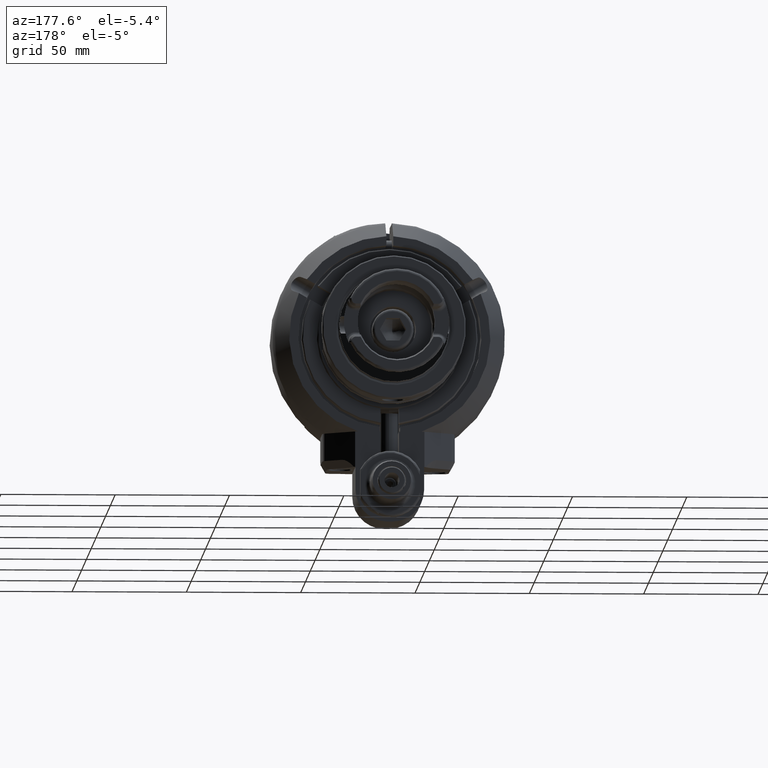
[diagram: clean part render]
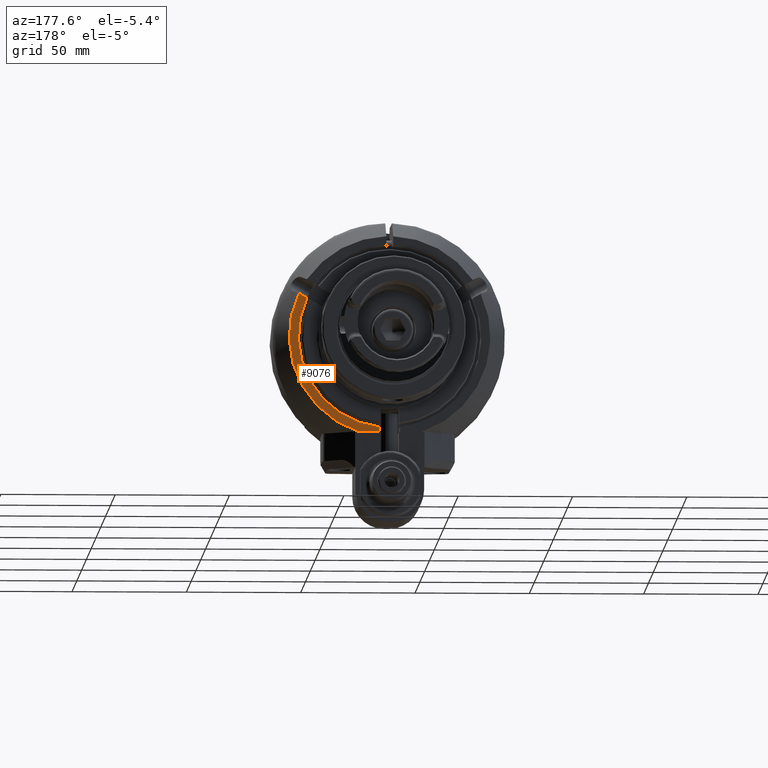
[diagram: same view with one face highlighted and labeled with its STEP entity id]
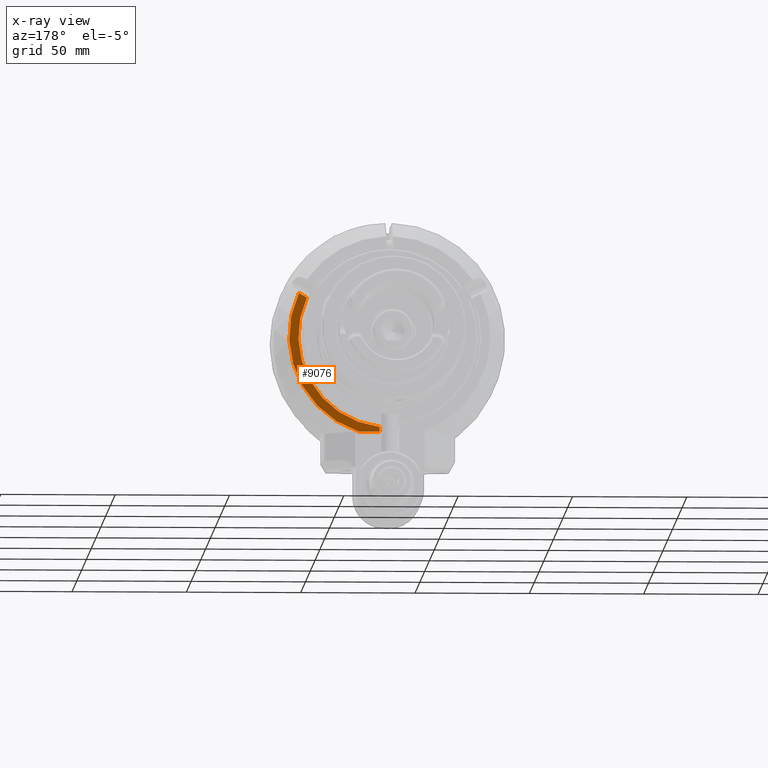
[diagram: x-ray of the same camera — body ghosted, the highlighted face saturated]
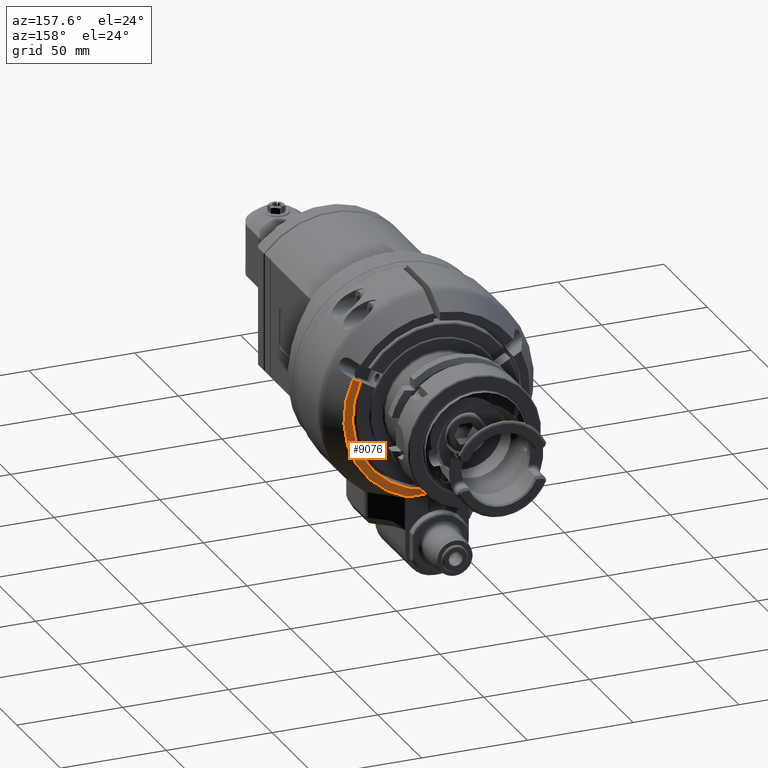
[diagram: same view with one face highlighted and labeled with its STEP entity id]
A machine part, auxiliary view. The second image highlights one B-rep face of the part: STEP entity #9076.
The next image is the same camera in x-ray: the body ghosted, the highlighted face saturated — about 0% of this face is hidden behind the body in this view.
A second angle (auxiliary view) of the same face is appended — the face is thin or edge-on in the first view.
In plain terms, the highlighted planar face has unit normal (0, 1, 0).
Its self-contained STEP definition (entity closure, byte-faithful):
#761=LINE('',#14497,#1410);
#784=LINE('',#14744,#1433);
#809=LINE('',#14951,#1458);
#1410=VECTOR('',#11274,0.369692692247598);
#1433=VECTOR('',#11369,0.0788949217317323);
#1458=VECTOR('',#11466,0.158031250781373);
#2186=FACE_OUTER_BOUND('',#2753,.T.);
#2753=EDGE_LOOP('',(#6883,#6884,#6885,#6886,#6887));
#3272=CIRCLE('',#9815,1.5748031496063);
#3279=CIRCLE('',#9827,1.73228346456693);
#3829=VERTEX_POINT('',#14494);
#3830=VERTEX_POINT('',#14496);
#3867=VERTEX_POINT('',#14741);
#3871=VERTEX_POINT('',#14759);
#3882=VERTEX_POINT('',#14835);
#4876=EDGE_CURVE('',#3830,#3829,#761,.T.);
#4933=EDGE_CURVE('',#3867,#3829,#784,.T.);
#4937=EDGE_CURVE('',#3867,#3871,#3272,.T.);
#4954=EDGE_CURVE('',#3882,#3830,#3279,.T.);
#4987=EDGE_CURVE('',#3871,#3882,#809,.T.);
#6883=ORIENTED_EDGE('',*,*,#4987,.T.);
#6884=ORIENTED_EDGE('',*,*,#4954,.T.);
#6885=ORIENTED_EDGE('',*,*,#4876,.T.);
#6886=ORIENTED_EDGE('',*,*,#4933,.F.);
#6887=ORIENTED_EDGE('',*,*,#4937,.T.);
#8703=PLANE('',#9850);
#9076=ADVANCED_FACE('',(#2186),#8703,.T.);
#9815=AXIS2_PLACEMENT_3D('',#14761,#11374,#11375);
#9827=AXIS2_PLACEMENT_3D('',#14836,#11404,#11405);
#9850=AXIS2_PLACEMENT_3D('',#14952,#11467,#11468);
#11274=DIRECTION('',(-1.,0.,0.));
#11369=DIRECTION('',(0.,0.,-1.));
#11374=DIRECTION('center_axis',(0.,-1.,0.));
#11375=DIRECTION('ref_axis',(0.112499999999996,0.,-0.99365172470036));
#11404=DIRECTION('center_axis',(0.,1.,0.));
#11405=DIRECTION('ref_axis',(0.90305390423411,0.,0.429527235513105));
#11466=DIRECTION('',(0.866025403784429,0.,0.500000000000017));
#11467=DIRECTION('center_axis',(0.,1.,0.));
#11468=DIRECTION('ref_axis',(0.,0.,1.));
#14494=CARTESIAN_POINT('',(0.177165354330709,1.55511811023622,-1.64370078740157));
#14496=CARTESIAN_POINT('',(0.546858046578346,1.55511811023622,-1.64370078740157));
#14497=CARTESIAN_POINT('',(0.546858046578346,1.55511811023622,-1.64370078740157));
#14741=CARTESIAN_POINT('',(0.177165354330709,1.55511811023622,-1.56480586566969));
#14744=CARTESIAN_POINT('',(0.177165354330709,1.55511811023622,-1.56480586566969));
#14759=CARTESIAN_POINT('',(1.42748626814882,1.55511811023622,0.665047302269685));
#14761=CARTESIAN_POINT('Origin',(0.,1.55511811023622,0.));
#14835=CARTESIAN_POINT('',(1.56434534591732,1.55511811023622,0.744062927660236));
#14836=CARTESIAN_POINT('Origin',(0.,1.55511811023622,0.));
#14951=CARTESIAN_POINT('',(1.42748626814882,1.55511811023622,0.665047302269685));
#14952=CARTESIAN_POINT('Origin',(0.,1.55511811023622,1.60433070866142));